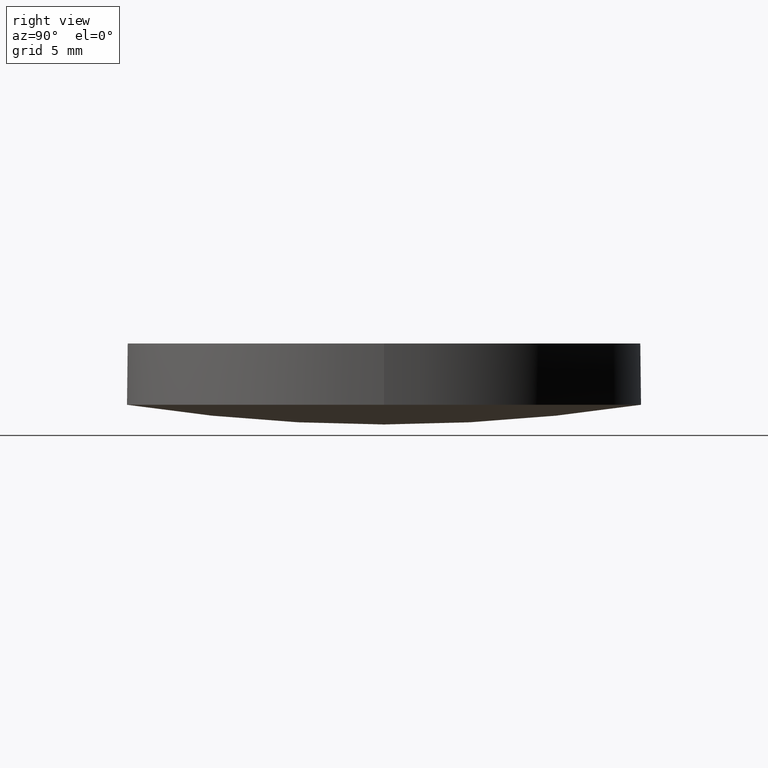
[diagram: clean part render]
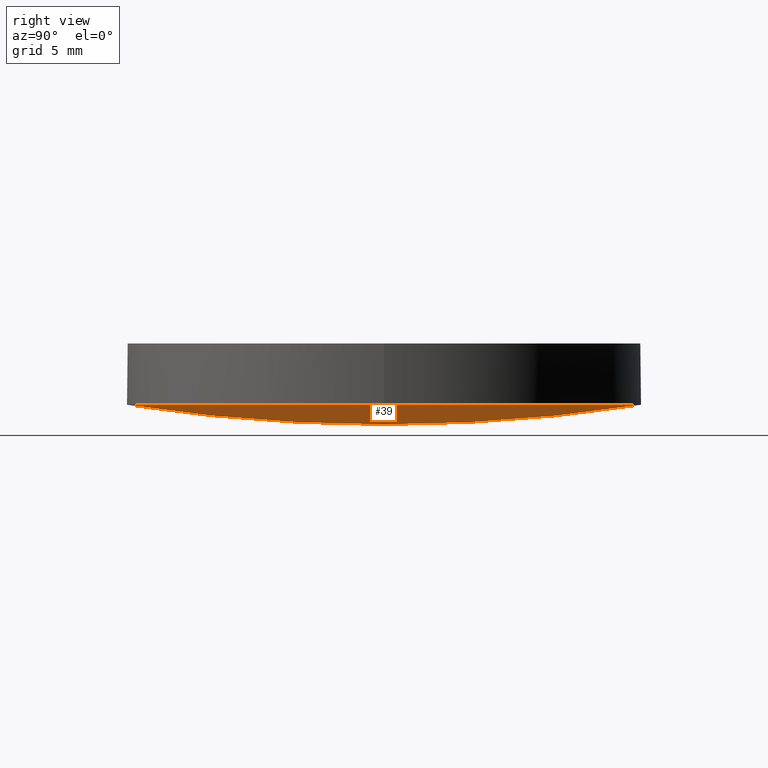
[diagram: same view with one face highlighted and labeled with its STEP entity id]
A machine part, right view. The second image highlights one B-rep face of the part: STEP entity #39.
In plain terms, the highlighted face is a freeform B-spline surface patch.
Its self-contained STEP definition (entity closure, byte-faithful):
#1 = CARTESIAN_POINT ( 'NONE',  ( 8.444291087202406800, 12.85118684754875300, 1.322339546411123200 ) ) ;
#5 = CARTESIAN_POINT ( 'NONE',  ( 12.62268370449652400, 12.85118684754875500, 1.970766215155255200 ) ) ;
#16 = CARTESIAN_POINT ( 'NONE',  ( 8.580961051081475300, 4.318186088391157400, -0.004622122366848341800 ) ) ;
#20 = CARTESIAN_POINT ( 'NONE',  ( 8.444291087202406800, -12.85118684754873200, 1.322339546411123400 ) ) ;
#22 = DIRECTION ( 'NONE',  ( 1.000000000000000000, 0.0000000000000000000, 0.0000000000000000000 ) ) ;
#28 = CIRCLE ( 'NONE', #82, 83.31000000000000200 ) ;
#39 = ADVANCED_FACE ( 'NONE', ( #205 ), #168, .T. ) ;
#50 = CARTESIAN_POINT ( 'NONE',  ( -2.948672364854027000E-014, -4.318186088391136000, -0.3350613801073441000 ) ) ;
#51 = CARTESIAN_POINT ( 'NONE',  ( 4.228406556729891200, 12.85118684754875300, 0.9971632331299675700 ) ) ;
#63 = EDGE_CURVE ( 'NONE', #74, #120, #150, .T. ) ;
#66 = CARTESIAN_POINT ( 'NONE',  ( 8.580961051081475300, -4.318186088391136900, -0.004622122366847365200 ) ) ;
#72 = DIRECTION ( 'NONE',  ( -0.0000000000000000000, -0.0000000000000000000, -1.000000000000000000 ) ) ;
#74 = VERTEX_POINT ( 'NONE', #181 ) ;
#82 = AXIS2_PLACEMENT_3D ( 'NONE', #115, #129, #210 ) ;
#85 = CARTESIAN_POINT ( 'NONE',  ( -2.948672364854027000E-014, 4.318186088391159100, -0.3350613801073449900 ) ) ;
#87 = CARTESIAN_POINT ( 'NONE',  ( -2.901708517425187700E-014, -12.85118684754873400, 0.9971632331299690200 ) ) ;
#88 = CARTESIAN_POINT ( 'NONE',  ( 12.69999999999999900, 2.442490654175340100E-015, 0.9737012005033109900 ) ) ;
#109 = CARTESIAN_POINT ( 'NONE',  ( 4.996003610813200500E-016, 2.442490654175340100E-015, 0.9737012005033109900 ) ) ;
#110 = AXIS2_PLACEMENT_3D ( 'NONE', #220, #184, #161 ) ;
#115 = CARTESIAN_POINT ( 'NONE',  ( 0.0000000000000000000, 7.105427357601000300E-015, 83.31000000000000200 ) ) ;
#120 = VERTEX_POINT ( 'NONE', #88 ) ;
#129 = DIRECTION ( 'NONE',  ( 1.000000000000000000, 1.229598738253770100E-031, -3.525219918788039800E-016 ) ) ;
#137 = CARTESIAN_POINT ( 'NONE',  ( 4.228406556729891200, -12.85118684754873200, 0.9971632331299675700 ) ) ;
#150 = CIRCLE ( 'NONE', #110, 12.69999999999999900 ) ;
#153 = CARTESIAN_POINT ( 'NONE',  ( 12.62268370449652200, -12.85118684754873400, 1.970766215155255200 ) ) ;
#156 = CARTESIAN_POINT ( 'NONE',  ( 4.296842872508972500, -4.318186088391136900, -0.3350613801073454900 ) ) ;
#160 = CIRCLE ( 'NONE', #162, 12.69999999999999900 ) ;
#161 = DIRECTION ( 'NONE',  ( 1.000000000000000000, -8.881784197001252300E-016, 0.0000000000000000000 ) ) ;
#162 = AXIS2_PLACEMENT_3D ( 'NONE', #109, #72, #22 ) ;
#165 = VERTEX_POINT ( 'NONE', #226 ) ;
#166 = EDGE_CURVE ( 'NONE', #120, #165, #160, .T. ) ;
#168 =( BOUNDED_SURFACE ( )  B_SPLINE_SURFACE ( 3, 3, ( 
 ( #87, #137, #20, #153 ),
 ( #50, #156, #66, #193 ),
 ( #85, #216, #16, #178 ),
 ( #235, #51, #1, #5 ) ),
 .UNSPECIFIED., .F., .F., .F. ) 
 B_SPLINE_SURFACE_WITH_KNOTS ( ( 4, 4 ),
 ( 4, 4 ),
 ( 0.0000000000000000000, 1.000000000000000000 ),
 ( 0.0000000000000000000, 1.000000000000000000 ),
 .UNSPECIFIED. ) 
 GEOMETRIC_REPRESENTATION_ITEM ( )  RATIONAL_B_SPLINE_SURFACE ( (
 ( 1.000000000000000000, 0.9980257296944046200, 0.9980257296944046200, 1.000000000000000000),
 ( 0.9920204598637220000, 0.9900619433272699300, 0.9900619433272699300, 0.9920204598637220000),
 ( 0.9920204598637220000, 0.9900619433272699300, 0.9900619433272699300, 0.9920204598637220000),
 ( 1.000000000000000000, 0.9980257296944046200, 0.9980257296944046200, 1.000000000000000000) ) ) 
 REPRESENTATION_ITEM ( '' )  SURFACE ( )  );
#170 = ORIENTED_EDGE ( 'NONE', *, *, #234, .T. ) ;
#178 = CARTESIAN_POINT ( 'NONE',  ( 12.82698051380061300, 4.318186088391159100, 0.6542992638710691800 ) ) ;
#181 = CARTESIAN_POINT ( 'NONE',  ( -2.902535605672694400E-014, 12.70000000000003300, 0.9737012005033203200 ) ) ;
#184 = DIRECTION ( 'NONE',  ( -0.0000000000000000000, -0.0000000000000000000, -1.000000000000000000 ) ) ;
#193 = CARTESIAN_POINT ( 'NONE',  ( 12.82698051380061200, -4.318186088391136000, 0.6542992638710700700 ) ) ;
#195 = EDGE_LOOP ( 'NONE', ( #221, #170, #218 ) ) ;
#205 = FACE_OUTER_BOUND ( 'NONE', #195, .T. ) ;
#210 = DIRECTION ( 'NONE',  ( 1.970575965456774000E-046, -1.000000000000000000, -3.331601922413745500E-016 ) ) ;
#216 = CARTESIAN_POINT ( 'NONE',  ( 4.296842872508972500, 4.318186088391157400, -0.3350613801073463700 ) ) ;
#218 = ORIENTED_EDGE ( 'NONE', *, *, #63, .T. ) ;
#220 = CARTESIAN_POINT ( 'NONE',  ( 4.996003610813200500E-016, 2.442490654175340100E-015, 0.9737012005033109900 ) ) ;
#221 = ORIENTED_EDGE ( 'NONE', *, *, #166, .T. ) ;
#226 = CARTESIAN_POINT ( 'NONE',  ( -2.902535605672694400E-014, -12.70000000000002400, 0.9737012005033203200 ) ) ;
#234 = EDGE_CURVE ( 'NONE', #165, #74, #28, .T. ) ;
#235 = CARTESIAN_POINT ( 'NONE',  ( -2.901708517425187700E-014, 12.85118684754875500, 0.9971632331299690200 ) ) ;